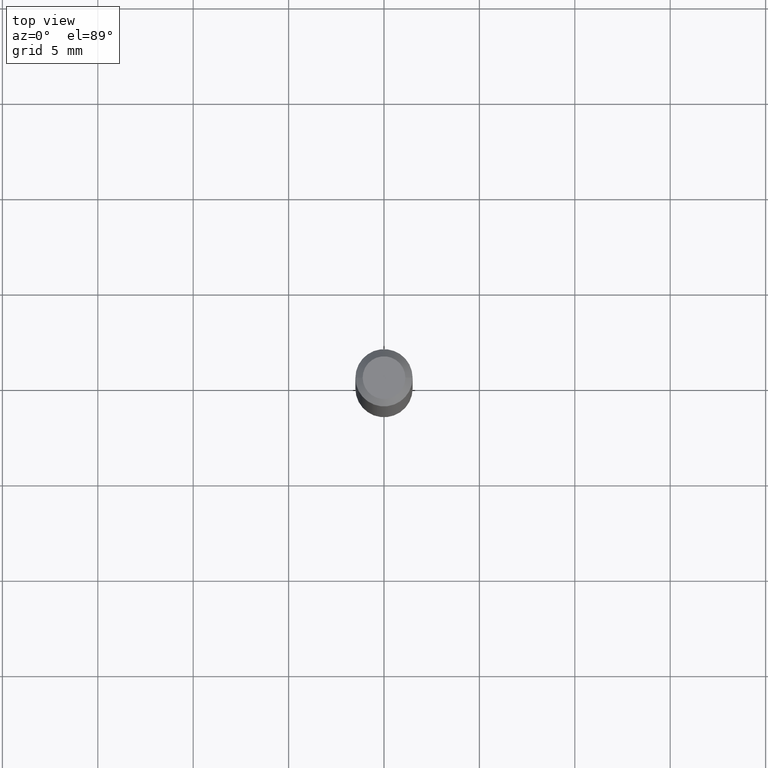
[diagram: clean part render]
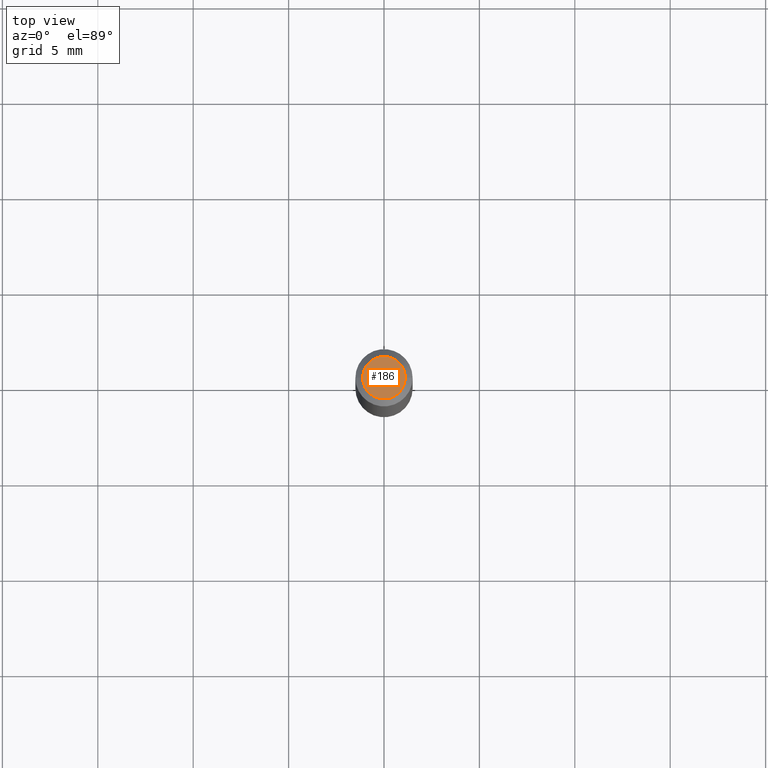
[diagram: same view with one face highlighted and labeled with its STEP entity id]
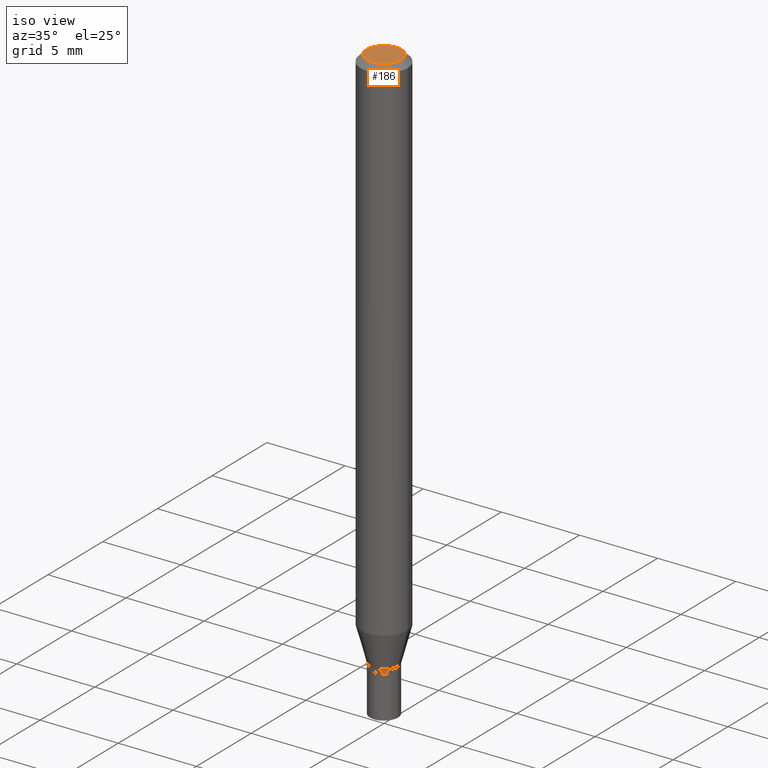
[diagram: same view with one face highlighted and labeled with its STEP entity id]
A machine part, top view. The second image highlights one B-rep face of the part: STEP entity #186.
A second angle (iso view) of the same face is appended — the face is thin or edge-on in the first view.
In plain terms, the highlighted planar face has unit normal (0, -0, -1).
Its self-contained STEP definition (entity closure, byte-faithful):
#1 = VERTEX_POINT ( 'NONE', #354 ) ;
#4 = CARTESIAN_POINT ( 'NONE',  ( -2.903582104602009454E-45, 4.145545716378002760E-31, 1.187331483132478339E-16 ) ) ;
#6 = CARTESIAN_POINT ( 'NONE',  ( -0.04404999999999999888, 3.337856159934036604E-16, 1.187331483132455906E-16 ) ) ;
#17 = DIRECTION ( 'NONE',  ( 2.438088387897960049E-29, -3.491481338843145188E-15, -1.000000000000000000 ) ) ;
#25 = EDGE_LOOP ( 'NONE', ( #31, #418 ) ) ;
#31 = ORIENTED_EDGE ( 'NONE', *, *, #150, .T. ) ;
#36 = VERTEX_POINT ( 'NONE', #6 ) ;
#44 = AXIS2_PLACEMENT_3D ( 'NONE', #342, #237, #378 ) ;
#111 = EDGE_CURVE ( 'NONE', #1, #36, #249, .T. ) ;
#150 = EDGE_CURVE ( 'NONE', #36, #1, #330, .T. ) ;
#165 = DIRECTION ( 'NONE',  ( -1.000000000000000000, 6.982962677686265922E-15, -4.876176775795935793E-29 ) ) ;
#169 = FACE_OUTER_BOUND ( 'NONE', #25, .T. ) ;
#178 = AXIS2_PLACEMENT_3D ( 'NONE', #450, #17, #165 ) ;
#186 = ADVANCED_FACE ( 'NONE', ( #169 ), #415, .F. ) ;
#224 = DIRECTION ( 'NONE',  ( 1.000000000000000000, -6.982962677686265922E-15, 4.888540261209747396E-29 ) ) ;
#237 = DIRECTION ( 'NONE',  ( -2.445468806185136597E-29, 3.491481338843145583E-15, 1.000000000000000000 ) ) ;
#248 = AXIS2_PLACEMENT_3D ( 'NONE', #4, #400, #224 ) ;
#249 = CIRCLE ( 'NONE', #248, 0.04404999999999999888 ) ;
#330 = CIRCLE ( 'NONE', #44, 0.04404999999999999888 ) ;
#342 = CARTESIAN_POINT ( 'NONE',  ( -2.903582104602009454E-45, 4.145545716378002760E-31, 1.187331483132478339E-16 ) ) ;
#354 = CARTESIAN_POINT ( 'NONE',  ( 0.04404999999999999888, -3.798447818264458600E-16, 1.187331483132502252E-16 ) ) ;
#378 = DIRECTION ( 'NONE',  ( 1.000000000000000000, -6.982962677686265922E-15, 4.888540261209747396E-29 ) ) ;
#400 = DIRECTION ( 'NONE',  ( -2.445468806185136597E-29, 3.491481338843145583E-15, 1.000000000000000000 ) ) ;
#415 = PLANE ( 'NONE',  #178 ) ;
#418 = ORIENTED_EDGE ( 'NONE', *, *, #111, .T. ) ;
#450 = CARTESIAN_POINT ( 'NONE',  ( 3.075995059520799729E-16, 0.04404999999999999888, -9.443317881941664879E-17 ) ) ;